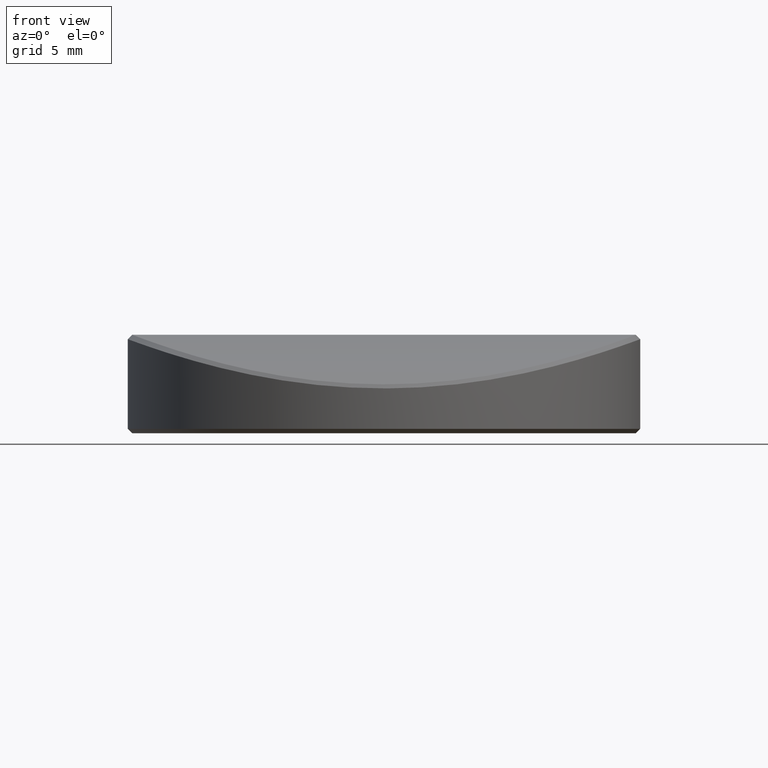
[diagram: clean part render]
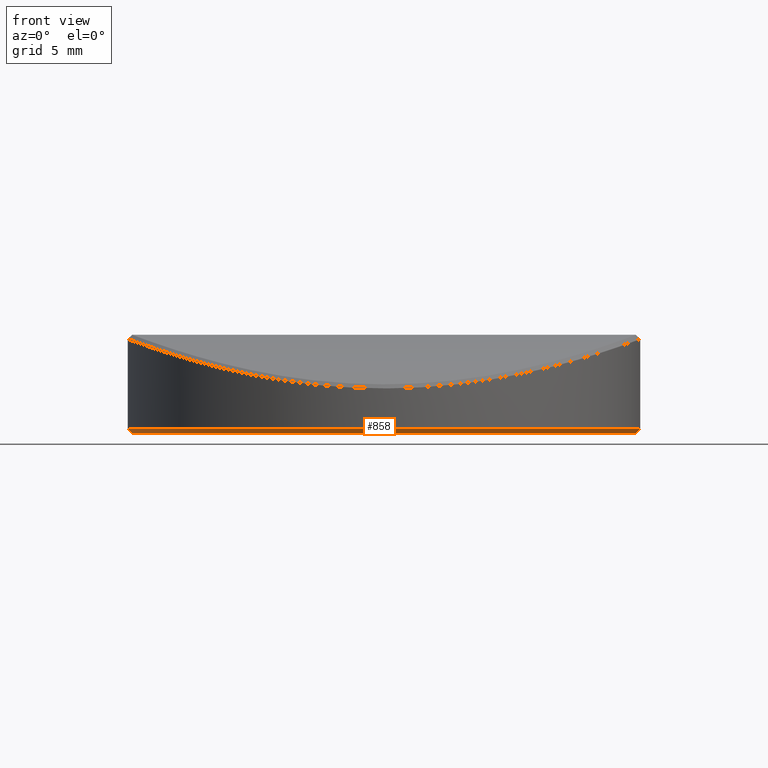
[diagram: same view with one face highlighted and labeled with its STEP entity id]
A machine part, front view. The second image highlights one B-rep face of the part: STEP entity #858.
In plain terms, the highlighted conical surface has half-angle 45 deg.
Its self-contained STEP definition (entity closure, byte-faithful):
#25 = EDGE_CURVE ( 'NONE', #330, #2142, #1707, .T. ) ;
#118 = ORIENTED_EDGE ( 'NONE', *, *, #2461, .F. ) ;
#320 = DIRECTION ( 'NONE',  ( 1.000000000000000000, 0.000000000000000000, 0.000000000000000000 ) ) ;
#323 = AXIS2_PLACEMENT_3D ( 'NONE', #1223, #2243, #1415 ) ;
#330 = VERTEX_POINT ( 'NONE', #679 ) ;
#404 = VECTOR ( 'NONE', #1514, 1000.000000000000114 ) ;
#446 = VECTOR ( 'NONE', #2328, 1000.000000000000114 ) ;
#562 = VERTEX_POINT ( 'NONE', #1835 ) ;
#679 = CARTESIAN_POINT ( 'NONE',  ( -11.49999999999999645, 1.420590287010929336E-15, 0.000000000000000000 ) ) ;
#766 = ORIENTED_EDGE ( 'NONE', *, *, #2104, .F. ) ;
#858 = ADVANCED_FACE ( 'NONE', ( #1863 ), #2493, .T. ) ;
#868 = DIRECTION ( 'NONE',  ( -0.000000000000000000, -0.000000000000000000, -1.000000000000000000 ) ) ;
#873 = DIRECTION ( 'NONE',  ( -0.000000000000000000, -0.000000000000000000, 1.000000000000000000 ) ) ;
#1028 = VERTEX_POINT ( 'NONE', #1136 ) ;
#1136 = CARTESIAN_POINT ( 'NONE',  ( 11.49999999999999645, 0.000000000000000000, 0.000000000000000000 ) ) ;
#1223 = CARTESIAN_POINT ( 'NONE',  ( 0.000000000000000000, 0.000000000000000000, 0.2000000000000040079 ) ) ;
#1235 = CARTESIAN_POINT ( 'NONE',  ( 0.000000000000000000, 0.000000000000000000, 0.000000000000000000 ) ) ;
#1264 = AXIS2_PLACEMENT_3D ( 'NONE', #1235, #868, #2021 ) ;
#1302 = EDGE_CURVE ( 'NONE', #1028, #562, #1738, .T. ) ;
#1415 = DIRECTION ( 'NONE',  ( 1.000000000000000000, 0.000000000000000000, 0.000000000000000000 ) ) ;
#1514 = DIRECTION ( 'NONE',  ( -0.7071067811865443531, 8.659560562354895880E-17, 0.7071067811865506814 ) ) ;
#1541 = CARTESIAN_POINT ( 'NONE',  ( 11.69999999999999929, 0.000000000000000000, 0.2000000000000040079 ) ) ;
#1549 = EDGE_LOOP ( 'NONE', ( #1951, #118, #2084, #766 ) ) ;
#1707 = LINE ( 'NONE', #2495, #404 ) ;
#1738 = LINE ( 'NONE', #1541, #446 ) ;
#1835 = CARTESIAN_POINT ( 'NONE',  ( 11.69999999999999929, 1.432836755002403087E-15, 0.2000000000000040079 ) ) ;
#1863 = FACE_OUTER_BOUND ( 'NONE', #1549, .T. ) ;
#1951 = ORIENTED_EDGE ( 'NONE', *, *, #25, .F. ) ;
#2021 = DIRECTION ( 'NONE',  ( 1.000000000000000000, 0.000000000000000000, 0.000000000000000000 ) ) ;
#2073 = CARTESIAN_POINT ( 'NONE',  ( 0.000000000000000000, 0.000000000000000000, 0.2000000000000040079 ) ) ;
#2081 = CIRCLE ( 'NONE', #323, 11.69999999999999929 ) ;
#2084 = ORIENTED_EDGE ( 'NONE', *, *, #1302, .T. ) ;
#2104 = EDGE_CURVE ( 'NONE', #2142, #562, #2081, .T. ) ;
#2120 = AXIS2_PLACEMENT_3D ( 'NONE', #2073, #873, #320 ) ;
#2142 = VERTEX_POINT ( 'NONE', #2218 ) ;
#2212 = CIRCLE ( 'NONE', #1264, 11.49999999999999645 ) ;
#2218 = CARTESIAN_POINT ( 'NONE',  ( -11.69999999999999929, 0.000000000000000000, 0.2000000000000040079 ) ) ;
#2243 = DIRECTION ( 'NONE',  ( -0.000000000000000000, -0.000000000000000000, 1.000000000000000000 ) ) ;
#2328 = DIRECTION ( 'NONE',  ( 0.7071067811865443531, 0.000000000000000000, 0.7071067811865506814 ) ) ;
#2461 = EDGE_CURVE ( 'NONE', #1028, #330, #2212, .T. ) ;
#2493 = CONICAL_SURFACE ( 'NONE', #2120, 11.69999999999999929, 0.7853981633974439491 ) ;
#2495 = CARTESIAN_POINT ( 'NONE',  ( -11.69999999999999929, 1.432836755002403087E-15, 0.2000000000000040079 ) ) ;